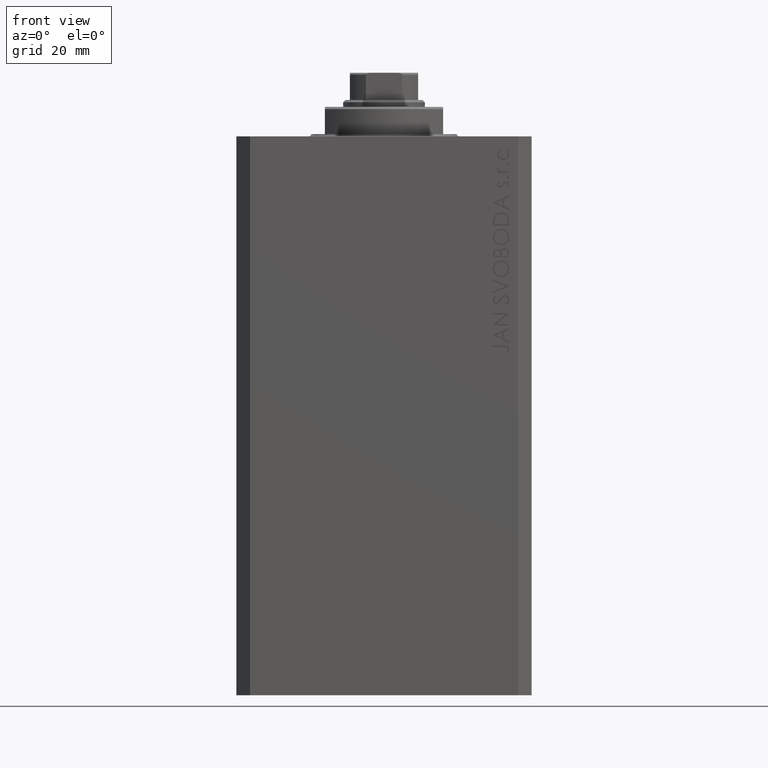
[diagram: clean part render]
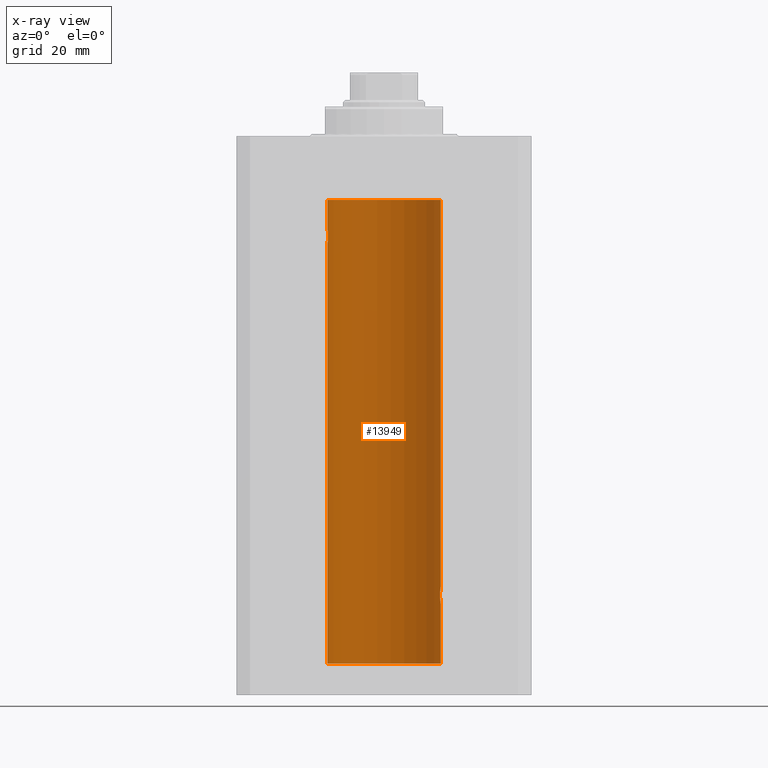
[diagram: x-ray — body ghosted, one internal face saturated and labeled with its STEP entity id]
A machine part, front view, then the same camera in x-ray: the body is ghosted and one INTERNAL B-rep face — a face not visible from any outside direction — is saturated and labeled: STEP entity #13949.
In plain terms, the highlighted cylindrical surface (partial cylindrical patch) has radius 12.5 mm, axis along (0, 0, 1).
Its self-contained STEP definition (entity closure, byte-faithful):
#69 = ORIENTED_EDGE ( 'NONE', *, *, #40205, .F. ) ;
#202 = VECTOR ( 'NONE', #44800, 1000.000000000000000 ) ;
#315 = VERTEX_POINT ( 'NONE', #21412 ) ;
#601 = VECTOR ( 'NONE', #34426, 1000.000000000000000 ) ;
#1152 = CARTESIAN_POINT ( 'NONE',  ( 12.48390005916863110, 0.6457215011736527899, -102.8974277155426620 ) ) ;
#1713 = CARTESIAN_POINT ( 'NONE',  ( -12.50000000000000000, 1.530808498934191127E-15, -116.0999999999999943 ) ) ;
#2114 = CARTESIAN_POINT ( 'NONE',  ( 0.000000000000000000, 0.000000000000000000, -116.0999999999999943 ) ) ;
#2415 = CARTESIAN_POINT ( 'NONE',  ( -12.50000000000000178, 0.1323736289504353625, -19.99999999999999645 ) ) ;
#2618 = CARTESIAN_POINT ( 'NONE',  ( 12.50000000000000000, 0.000000000000000000, -116.0999999999999943 ) ) ;
#3948 = VERTEX_POINT ( 'NONE', #21474 ) ;
#4140 = CARTESIAN_POINT ( 'NONE',  ( 12.37021546997940113, 1.797317011867403114, -100.1129511974108084 ) ) ;
#4520 = CARTESIAN_POINT ( 'NONE',  ( 12.43016561391612917, 1.322713721413880661, -102.5057887783670054 ) ) ;
#5227 = EDGE_LOOP ( 'NONE', ( #15889, #43329, #6275, #18872, #23007, #17257, #7970, #69, #33994 ) ) ;
#5296 = B_SPLINE_CURVE_WITH_KNOTS ( 'NONE', 3,
 ( #31312, #2415, #6251, #16997, #8901, #37988, #31548, #46093, #27962, #42525, #23435, #5309, #19855, #47027, #40119, #21737, #24851, #46558, #43456, #32015, #28191, #7429, #18392, #36533, #36301, #21265, #25559, #10779, #21031, #35823 ),
 .UNSPECIFIED., .F., .F.,
 ( 4, 2, 2, 2, 2, 2, 2, 2, 2, 2, 2, 2, 2, 2, 4 ),
 ( 1.644401584110676555E-19, 0.0003914362731607608811, 0.0007828725463215216538, 0.001174308819482282155, 0.001565745092643043091, 0.002348617638964556505, 0.003131490185286070569, 0.003522926458446832155, 0.003914362731607595042, 0.004305799004768356628, 0.004697235277929118213, 0.005088671551089880667, 0.005480107824250643120, 0.005871544097411405573, 0.006262980370572167159 ),
 .UNSPECIFIED. ) ;
#5309 = CARTESIAN_POINT ( 'NONE',  ( -12.34781876294798586, 1.947190906025044077, -21.47436412829510388 ) ) ;
#6251 = CARTESIAN_POINT ( 'NONE',  ( -12.49789934882883458, 0.2624928479599908937, -20.01301208516349206 ) ) ;
#6275 = ORIENTED_EDGE ( 'NONE', *, *, #36904, .T. ) ;
#6681 = LINE ( 'NONE', #2618, #8605 ) ;
#6907 = CARTESIAN_POINT ( 'NONE',  ( 0.000000000000000000, 0.000000000000000000, -13.99999999999999822 ) ) ;
#7022 = CARTESIAN_POINT ( 'NONE',  ( 12.50000000000000000, -7.266276684081261841E-23, -99.00000000000000000 ) ) ;
#7282 = DIRECTION ( 'NONE',  ( 1.000000000000000000, 0.000000000000000000, 0.000000000000000000 ) ) ;
#7429 = CARTESIAN_POINT ( 'NONE',  ( -12.43034574091277733, 1.321095788880538802, -23.50733550364322610 ) ) ;
#7486 = CARTESIAN_POINT ( 'NONE',  ( 12.48395395845270528, 0.6446573166014715195, -99.10222124213518669 ) ) ;
#7776 = LINE ( 'NONE', #18035, #14614 ) ;
#7966 = CARTESIAN_POINT ( 'NONE',  ( 12.35520276972935250, 1.897773362058238655, -100.3552827863433663 ) ) ;
#7970 = ORIENTED_EDGE ( 'NONE', *, *, #22139, .T. ) ;
#8605 = VECTOR ( 'NONE', #17188, 1000.000000000000000 ) ;
#8901 = CARTESIAN_POINT ( 'NONE',  ( -12.48390768591463207, 0.6455696738844917126, -20.10252270298194333 ) ) ;
#9041 = CIRCLE ( 'NONE', #41812, 12.50000000000000000 ) ;
#9394 = CARTESIAN_POINT ( 'NONE',  ( -12.50000000000000000, 1.530808498934191127E-15, -116.0999999999999943 ) ) ;
#9622 = VERTEX_POINT ( 'NONE', #30914 ) ;
#10779 = CARTESIAN_POINT ( 'NONE',  ( -12.49788564268283864, 0.2633501011236118461, -23.98690384766254979 ) ) ;
#10871 = DIRECTION ( 'NONE',  ( -0.000000000000000000, -0.000000000000000000, 1.000000000000000000 ) ) ;
#11923 = CARTESIAN_POINT ( 'NONE',  ( 12.33896267925302759, 2.000000000000248690, -101.2614317422078614 ) ) ;
#12876 = CARTESIAN_POINT ( 'NONE',  ( 12.46019522898365217, 1.002712894177336223, -102.7354089602760041 ) ) ;
#13949 = ADVANCED_FACE ( 'NONE', ( #14455 ), #28991, .F. ) ;
#13993 = VERTEX_POINT ( 'NONE', #29696 ) ;
#14322 = DIRECTION ( 'NONE',  ( 1.000000000000000000, 0.000000000000000000, 0.000000000000000000 ) ) ;
#14427 = CARTESIAN_POINT ( 'NONE',  ( 12.50000000000000000, 2.367791904281511223E-15, -103.0000000000000142 ) ) ;
#14455 = FACE_OUTER_BOUND ( 'NONE', #5227, .T. ) ;
#14614 = VECTOR ( 'NONE', #32603, 1000.000000000000000 ) ;
#15511 = CARTESIAN_POINT ( 'NONE',  ( 12.50000000000000000, 2.367791904281511223E-15, -103.0000000000000142 ) ) ;
#15889 = ORIENTED_EDGE ( 'NONE', *, *, #28397, .F. ) ;
#16463 = DIRECTION ( 'NONE',  ( 0.000000000000000000, 0.000000000000000000, 1.000000000000000000 ) ) ;
#16997 = CARTESIAN_POINT ( 'NONE',  ( -12.48990118705761532, 0.5184196815546057158, -20.06395648222637362 ) ) ;
#17188 = DIRECTION ( 'NONE',  ( -0.000000000000000000, -0.000000000000000000, 1.000000000000000000 ) ) ;
#17257 = ORIENTED_EDGE ( 'NONE', *, *, #40905, .T. ) ;
#17753 = CARTESIAN_POINT ( 'NONE',  ( 12.34924836377100199, 1.935649219704934865, -100.4800206212716489 ) ) ;
#18035 = CARTESIAN_POINT ( 'NONE',  ( 12.50000000000000000, 0.000000000000000000, -116.0999999999999943 ) ) ;
#18392 = CARTESIAN_POINT ( 'NONE',  ( -12.44076681548080465, 1.220297236145719388, -23.58991408680628510 ) ) ;
#18872 = ORIENTED_EDGE ( 'NONE', *, *, #34436, .T. ) ;
#19855 = CARTESIAN_POINT ( 'NONE',  ( -12.33897869807161563, 1.999901172190678533, -21.73788193668375257 ) ) ;
#20012 = CARTESIAN_POINT ( 'NONE',  ( 12.49789833780794446, 0.2625555164371021766, -102.9869817082214780 ) ) ;
#20437 = CIRCLE ( 'NONE', #27285, 12.50000000000000000 ) ;
#21031 = CARTESIAN_POINT ( 'NONE',  ( -12.49999999999999289, 0.1306394121199380143, -23.99999999999998579 ) ) ;
#21229 = EDGE_CURVE ( 'NONE', #32133, #24497, #20437, .T. ) ;
#21265 = CARTESIAN_POINT ( 'NONE',  ( -12.48394649977302251, 0.6448065707253021195, -23.89773031393658087 ) ) ;
#21412 = CARTESIAN_POINT ( 'NONE',  ( -12.50000000000000000, 1.530808498934191127E-15, -13.99999999999999822 ) ) ;
#21474 = CARTESIAN_POINT ( 'NONE',  ( 12.33896267925302759, 2.000000000000247802, -101.0000000000000000 ) ) ;
#21567 = CARTESIAN_POINT ( 'NONE',  ( 12.39867611624532984, 1.590019252152829132, -99.77984495929614184 ) ) ;
#21737 = CARTESIAN_POINT ( 'NONE',  ( -12.34922241902462936, 1.935814255713573795, -22.51937350851555308 ) ) ;
#21799 = CARTESIAN_POINT ( 'NONE',  ( 12.44079117518645461, 1.220047488436368122, -99.40989676335085790 ) ) ;
#22139 = EDGE_CURVE ( 'NONE', #9622, #315, #9041, .T. ) ;
#22273 = CARTESIAN_POINT ( 'NONE',  ( 12.46910683544638410, 0.8866026273585041473, -99.20247863689696999 ) ) ;
#22503 = CARTESIAN_POINT ( 'NONE',  ( 12.33896267925302759, 2.000000000000247802, -101.0000000000000000 ) ) ;
#23007 = ORIENTED_EDGE ( 'NONE', *, *, #38397, .T. ) ;
#23435 = CARTESIAN_POINT ( 'NONE',  ( -12.37764291807175177, 1.747608771958140128, -20.99316879552500126 ) ) ;
#24063 = CARTESIAN_POINT ( 'NONE',  ( 12.50000000000000000, -7.266276684081261841E-23, -99.00000000000000000 ) ) ;
#24084 = DIRECTION ( 'NONE',  ( 1.000000000000000000, 0.000000000000000000, 0.000000000000000000 ) ) ;
#24497 = VERTEX_POINT ( 'NONE', #9394 ) ;
#24684 = CARTESIAN_POINT ( 'NONE',  ( -12.50000000000000000, 1.530808498934191127E-15, -116.0999999999999943 ) ) ;
#24851 = CARTESIAN_POINT ( 'NONE',  ( -12.35517291625592229, 1.897967064543090165, -22.64415233770294122 ) ) ;
#25289 = VERTEX_POINT ( 'NONE', #25826 ) ;
#25559 = CARTESIAN_POINT ( 'NONE',  ( -12.48983485452575160, 0.5201193324741341106, -23.93561774521849728 ) ) ;
#25620 = CARTESIAN_POINT ( 'NONE',  ( 12.34110728646152388, 1.986893050944454453, -100.7366134776498399 ) ) ;
#25826 = CARTESIAN_POINT ( 'NONE',  ( -12.50000000000000000, 1.530808426276628993E-15, -23.99999999999999645 ) ) ;
#26467 = CARTESIAN_POINT ( 'NONE',  ( 12.33896267925302759, 2.000000000000247802, -101.0000000000000000 ) ) ;
#27285 = AXIS2_PLACEMENT_3D ( 'NONE', #2114, #16463, #24084 ) ;
#27962 = CARTESIAN_POINT ( 'NONE',  ( -12.43019346654085133, 1.322451657002075232, -20.49398366327207910 ) ) ;
#28191 = CARTESIAN_POINT ( 'NONE',  ( -12.40913174964213006, 1.507394620545640773, -23.32102833500697869 ) ) ;
#28397 = EDGE_CURVE ( 'NONE', #24497, #25289, #30612, .T. ) ;
#28991 = CYLINDRICAL_SURFACE ( 'NONE', #30902, 12.50000000000000000 ) ;
#29696 = CARTESIAN_POINT ( 'NONE',  ( -12.50000000000000000, 7.797500795897845242E-17, -20.00000000000000000 ) ) ;
#30047 = CARTESIAN_POINT ( 'NONE',  ( 12.37760587642916477, 1.747868572747719229, -102.0063965316900152 ) ) ;
#30059 = EDGE_CURVE ( 'NONE', #13993, #25289, #5296, .T. ) ;
#30612 = LINE ( 'NONE', #1713, #601 ) ;
#30902 = AXIS2_PLACEMENT_3D ( 'NONE', #43545, #10871, #7282 ) ;
#30914 = CARTESIAN_POINT ( 'NONE',  ( 12.50000000000000000, 0.000000000000000000, -13.99999999999999822 ) ) ;
#30999 = CARTESIAN_POINT ( 'NONE',  ( 12.48989642018887736, 0.5185418732824252919, -102.9360129218760562 ) ) ;
#31312 = CARTESIAN_POINT ( 'NONE',  ( -12.50000000000000000, 7.797500795897845242E-17, -20.00000000000000000 ) ) ;
#31548 = CARTESIAN_POINT ( 'NONE',  ( -12.46021263690097136, 1.002494658017157203, -20.26446744561863511 ) ) ;
#31911 = CARTESIAN_POINT ( 'NONE',  ( 12.50000000000000000, 0.000000000000000000, -116.0999999999999943 ) ) ;
#32015 = CARTESIAN_POINT ( 'NONE',  ( -12.39864157855464377, 1.590288205413973310, -23.21980790594579602 ) ) ;
#32133 = VERTEX_POINT ( 'NONE', #31911 ) ;
#32603 = DIRECTION ( 'NONE',  ( -0.000000000000000000, -0.000000000000000000, 1.000000000000000000 ) ) ;
#33261 = CARTESIAN_POINT ( 'NONE',  ( 12.50000000000000178, 0.1306079576516670504, -99.00000000000000000 ) ) ;
#33633 = CARTESIAN_POINT ( 'NONE',  ( 12.39869754437268590, 1.598954131913722598, -102.2293215281301002 ) ) ;
#33994 = ORIENTED_EDGE ( 'NONE', *, *, #30059, .T. ) ;
#34426 = DIRECTION ( 'NONE',  ( -0.000000000000000000, -0.000000000000000000, 1.000000000000000000 ) ) ;
#34436 = EDGE_CURVE ( 'NONE', #37203, #3948, #46071, .T. ) ;
#35823 = CARTESIAN_POINT ( 'NONE',  ( -12.50000000000000000, 1.530808426276628993E-15, -23.99999999999999645 ) ) ;
#36020 = DIRECTION ( 'NONE',  ( 0.000000000000000000, 0.000000000000000000, 1.000000000000000000 ) ) ;
#36132 = CARTESIAN_POINT ( 'NONE',  ( 12.33896267925302759, 2.000000000000247802, -100.8693470594991766 ) ) ;
#36301 = CARTESIAN_POINT ( 'NONE',  ( -12.46909283808506252, 0.8868029758979389943, -23.79742491916154634 ) ) ;
#36533 = CARTESIAN_POINT ( 'NONE',  ( -12.46009879577770896, 1.003863686549169687, -23.73470742397610422 ) ) ;
#36832 = CARTESIAN_POINT ( 'NONE',  ( 12.46011632531799584, 1.003644408234883656, -99.26516799687675530 ) ) ;
#36904 = EDGE_CURVE ( 'NONE', #32133, #37203, #7776, .T. ) ;
#37203 = VERTEX_POINT ( 'NONE', #14427 ) ;
#37204 = CARTESIAN_POINT ( 'NONE',  ( 12.44079900692650931, 1.220007525301739282, -102.5901757908366676 ) ) ;
#37988 = CARTESIAN_POINT ( 'NONE',  ( -12.46903010196599837, 0.8876934327478138709, -20.20300788371382694 ) ) ;
#38397 = EDGE_CURVE ( 'NONE', #3948, #45025, #42930, .T. ) ;
#39709 = CARTESIAN_POINT ( 'NONE',  ( 12.48983962833819206, 0.5199974825204896067, -99.06435160808021578 ) ) ;
#40119 = CARTESIAN_POINT ( 'NONE',  ( -12.34109209020652465, 1.986986967296539452, -22.26269462454596848 ) ) ;
#40205 = EDGE_CURVE ( 'NONE', #13993, #315, #45749, .T. ) ;
#40905 = EDGE_CURVE ( 'NONE', #45025, #9622, #6681, .T. ) ;
#41812 = AXIS2_PLACEMENT_3D ( 'NONE', #6907, #36020, #14322 ) ;
#42525 = CARTESIAN_POINT ( 'NONE',  ( -12.39873273758731997, 1.598680238462368841, -20.77033506126850426 ) ) ;
#42930 = B_SPLINE_CURVE_WITH_KNOTS ( 'NONE', 3,
 ( #22503, #36132, #25620, #17753, #7966, #4140, #43988, #21567, #43756, #43517, #21799, #36832, #22273, #7486, #39709, #47088, #33261, #7022 ),
 .UNSPECIFIED., .F., .F.,
 ( 4, 2, 2, 2, 2, 2, 2, 2, 4 ),
 ( 0.003132244164174466730, 0.003523586189974241625, 0.003914928215774016521, 0.004306270241573791416, 0.004697612267373566311, 0.005088954293173341206, 0.005480296318973116969, 0.005871638344772890997, 0.006262980370572665892 ),
 .UNSPECIFIED. ) ;
#43329 = ORIENTED_EDGE ( 'NONE', *, *, #21229, .F. ) ;
#43456 = CARTESIAN_POINT ( 'NONE',  ( -12.37922086519035147, 1.734998657226764163, -23.00335814299181081 ) ) ;
#43517 = CARTESIAN_POINT ( 'NONE',  ( 12.43037348241797879, 1.320834183883838220, -99.49243837704294435 ) ) ;
#43545 = CARTESIAN_POINT ( 'NONE',  ( 0.000000000000000000, 0.000000000000000000, -116.0999999999999943 ) ) ;
#43756 = CARTESIAN_POINT ( 'NONE',  ( 12.40916530024876963, 1.507117913375716212, -99.67865955049006743 ) ) ;
#43988 = CARTESIAN_POINT ( 'NONE',  ( 12.37925647381943506, 1.734744884174218571, -99.99620732598651784 ) ) ;
#44602 = CARTESIAN_POINT ( 'NONE',  ( 12.34779119491631683, 1.947363444907009633, -101.5250277516825435 ) ) ;
#44800 = DIRECTION ( 'NONE',  ( -0.000000000000000000, -0.000000000000000000, 1.000000000000000000 ) ) ;
#45025 = VERTEX_POINT ( 'NONE', #24063 ) ;
#45311 = CARTESIAN_POINT ( 'NONE',  ( 12.50000000000000178, 0.1324055009716466613, -103.0000000000000426 ) ) ;
#45541 = CARTESIAN_POINT ( 'NONE',  ( 12.46901623405144122, 0.8878913781257877780, -102.7968965171755116 ) ) ;
#45749 = LINE ( 'NONE', #24684, #202 ) ;
#46071 = B_SPLINE_CURVE_WITH_KNOTS ( 'NONE', 3,
 ( #15511, #45311, #20012, #30999, #1152, #45541, #12876, #37204, #4520, #33633, #30047, #44602, #11923, #26467 ),
 .UNSPECIFIED., .F., .F.,
 ( 4, 2, 2, 2, 2, 2, 4 ),
 ( 2.300489247552402327E-18, 0.0003915305205218102386, 0.0007830610410436180920, 0.001174591561565426325, 0.001566122082087234232, 0.002349183123130850048, 0.003132244164174466730 ),
 .UNSPECIFIED. ) ;
#46093 = CARTESIAN_POINT ( 'NONE',  ( -12.44082361696003503, 1.219754986802280561, -20.40963319990594016 ) ) ;
#46558 = CARTESIAN_POINT ( 'NONE',  ( -12.37018026341338839, 1.797558627508997420, -22.88656313533015663 ) ) ;
#47027 = CARTESIAN_POINT ( 'NONE',  ( -12.33895470450622867, 2.000049200055401322, -22.12992629360264729 ) ) ;
#47088 = CARTESIAN_POINT ( 'NONE',  ( 12.49788668346399945, 0.2632864803365710937, -99.01308975838335869 ) ) ;